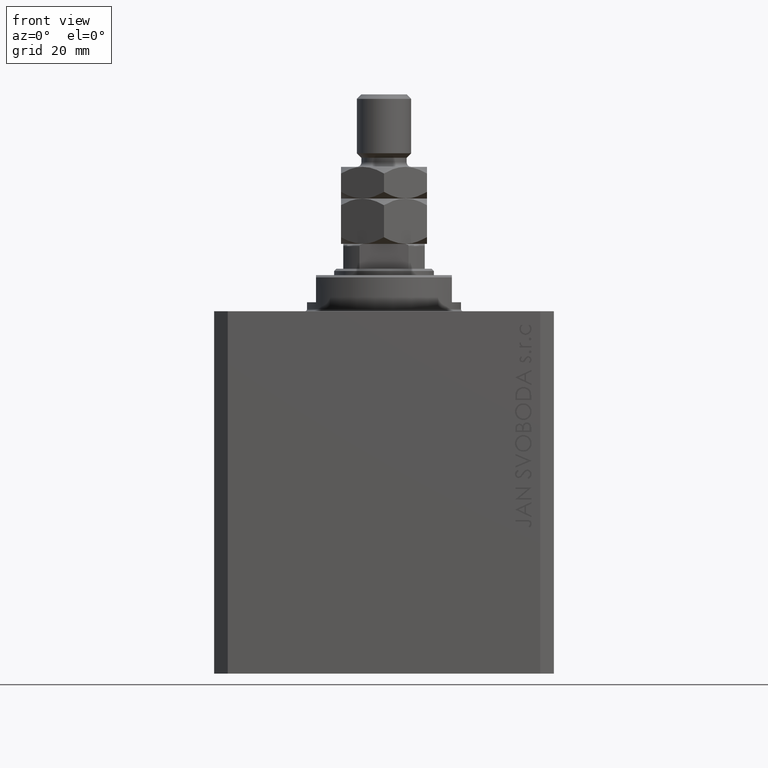
[diagram: clean part render]
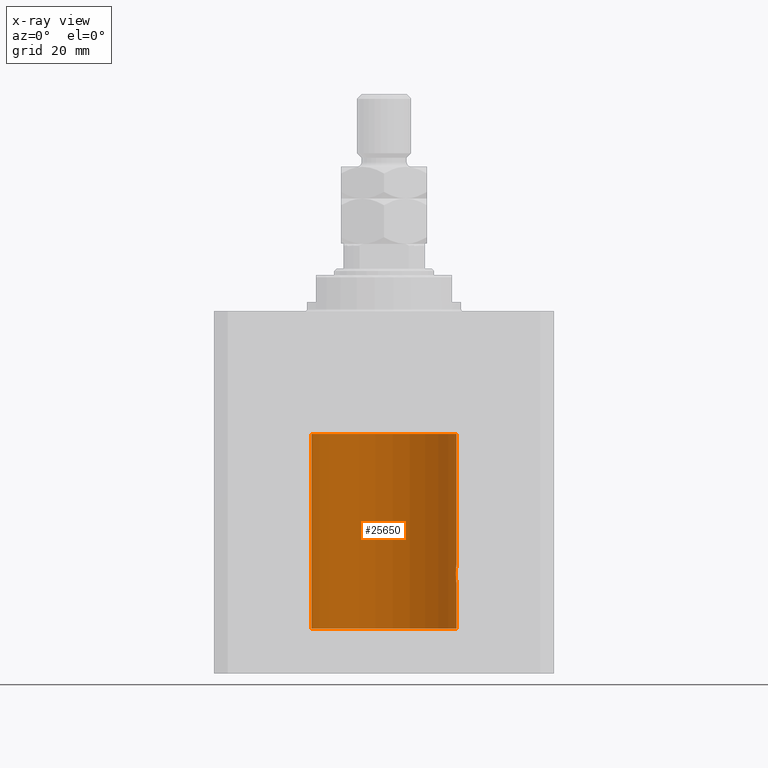
[diagram: x-ray — body ghosted, one internal face saturated and labeled with its STEP entity id]
A machine part, front view, then the same camera in x-ray: the body is ghosted and one INTERNAL B-rep face — a face not visible from any outside direction — is saturated and labeled: STEP entity #25650.
In plain terms, the highlighted cylindrical surface (partial cylindrical patch) has radius 16 mm, axis along (0, 0, 1).
Its self-contained STEP definition (entity closure, byte-faithful):
#510 = DIRECTION ( 'NONE',  ( 1.000000000000000000, 0.000000000000000000, 0.000000000000000000 ) ) ;
#533 = CARTESIAN_POINT ( 'NONE',  ( 15.95380611548779015, 1.219810915946573759, -59.59032870701327766 ) ) ;
#821 = CARTESIAN_POINT ( 'NONE',  ( 15.89878974374255449, 1.797508500259983100, -57.11334888788567099 ) ) ;
#1065 = CARTESIAN_POINT ( 'NONE',  ( 15.96887171920781689, 1.003448269354840328, -56.26505182542073413 ) ) ;
#1216 = DIRECTION ( 'NONE',  ( 1.000000000000000000, 0.000000000000000000, 0.000000000000000000 ) ) ;
#2469 = CARTESIAN_POINT ( 'NONE',  ( 16.00000000000000000, 0.000000000000000000, -70.09999999999999432 ) ) ;
#2581 = DIRECTION ( 'NONE',  ( 1.000000000000000000, 0.000000000000000000, 0.000000000000000000 ) ) ;
#3514 = CARTESIAN_POINT ( 'NONE',  ( 15.98743782203464825, 0.6453927552190282801, -59.89754035852681824 ) ) ;
#3760 = CARTESIAN_POINT ( 'NONE',  ( 15.97582125337101644, 0.8876008124445635694, -59.79704090617750722 ) ) ;
#4294 = CARTESIAN_POINT ( 'NONE',  ( 15.97588373855009536, 0.8864683965309536617, -56.20240655627671345 ) ) ;
#5034 = CARTESIAN_POINT ( 'NONE',  ( 15.92911104305801828, 1.507378839264609027, -56.67893664295412037 ) ) ;
#5482 = VERTEX_POINT ( 'NONE', #8463 ) ;
#6750 = VECTOR ( 'NONE', #35393, 1000.000000000000000 ) ;
#6781 = VERTEX_POINT ( 'NONE', #16782 ) ;
#7486 = CARTESIAN_POINT ( 'NONE',  ( 15.90454527605182200, 1.748004143318092840, -59.00616739381551668 ) ) ;
#8111 = EDGE_CURVE ( 'NONE', #16259, #6781, #42095, .T. ) ;
#8359 = ORIENTED_EDGE ( 'NONE', *, *, #13572, .F. ) ;
#8463 = CARTESIAN_POINT ( 'NONE',  ( -16.00000000000000000, 1.959434878635765131E-15, -70.09999999999999432 ) ) ;
#8604 = VERTEX_POINT ( 'NONE', #36005 ) ;
#8608 = LINE ( 'NONE', #46362, #47470 ) ;
#11412 = CARTESIAN_POINT ( 'NONE',  ( 15.87450786638750699, 2.000000000000304201, -58.00000000000000000 ) ) ;
#11694 = CARTESIAN_POINT ( 'NONE',  ( 16.00000000000000000, -2.739635037742051899E-23, -56.00000000000000000 ) ) ;
#11892 = CARTESIAN_POINT ( 'NONE',  ( 15.99211620657850830, 0.5182628822511372579, -59.93608344894171580 ) ) ;
#12087 = FACE_OUTER_BOUND ( 'NONE', #45492, .T. ) ;
#12921 = CARTESIAN_POINT ( 'NONE',  ( -16.00000000000000000, 1.959434878635765131E-15, -70.09999999999999432 ) ) ;
#13572 = EDGE_CURVE ( 'NONE', #16259, #5482, #44889, .T. ) ;
#13686 = DIRECTION ( 'NONE',  ( 0.000000000000000000, 0.000000000000000000, 1.000000000000000000 ) ) ;
#14535 = VERTEX_POINT ( 'NONE', #36571 ) ;
#14622 = CARTESIAN_POINT ( 'NONE',  ( 15.88135773388169447, 1.947448446433286851, -58.52472455433248655 ) ) ;
#14944 = AXIS2_PLACEMENT_3D ( 'NONE', #37297, #34547, #510 ) ;
#15133 = EDGE_CURVE ( 'NONE', #5482, #14535, #15892, .T. ) ;
#15598 = CARTESIAN_POINT ( 'NONE',  ( 15.94550883254178686, 1.322613426523516988, -59.50588495029015235 ) ) ;
#15892 = LINE ( 'NONE', #12921, #26685 ) ;
#16127 = CARTESIAN_POINT ( 'NONE',  ( 15.92095407913750726, 1.590131347295337116, -56.77998469042918828 ) ) ;
#16259 = VERTEX_POINT ( 'NONE', #2469 ) ;
#16297 = VERTEX_POINT ( 'NONE', #48120 ) ;
#16368 = CARTESIAN_POINT ( 'NONE',  ( 15.90582997788426312, 1.734897462761025189, -56.99646332855052577 ) ) ;
#16466 = EDGE_CURVE ( 'NONE', #37966, #8604, #8608, .T. ) ;
#16782 = CARTESIAN_POINT ( 'NONE',  ( 16.00000000000000000, -1.269217749118193288E-15, -60.00000000000000711 ) ) ;
#17391 = ORIENTED_EDGE ( 'NONE', *, *, #15133, .F. ) ;
#19093 = CARTESIAN_POINT ( 'NONE',  ( 15.95379436193629985, 1.219925354616381297, -56.40980009844313514 ) ) ;
#19576 = CARTESIAN_POINT ( 'NONE',  ( 15.87450786638750699, 2.000000000000304201, -58.00000000000000000 ) ) ;
#19738 = B_SPLINE_CURVE_WITH_KNOTS ( 'NONE', 3,
 ( #22265, #41268, #37320, #11892, #3514, #3760, #26210, #533, #15598, #30613, #7486, #14622, #23228, #11412 ),
 .UNSPECIFIED., .F., .F.,
 ( 4, 2, 2, 2, 2, 2, 4 ),
 ( 1.233258403080811936E-18, 0.0003912813346923395947, 0.0007825626693846778883, 0.001173844004077016561, 0.001565125338769355343, 0.002347688008154032689, 0.003130250677538710252 ),
 .UNSPECIFIED. ) ;
#20155 = ORIENTED_EDGE ( 'NONE', *, *, #37687, .T. ) ;
#20455 = CARTESIAN_POINT ( 'NONE',  ( 0.000000000000000000, 0.000000000000000000, -70.09999999999999432 ) ) ;
#22265 = CARTESIAN_POINT ( 'NONE',  ( 16.00000000000000000, -1.269217749118193288E-15, -60.00000000000000711 ) ) ;
#23228 = CARTESIAN_POINT ( 'NONE',  ( 15.87450786638751410, 2.000000000000305089, -58.26124530359818721 ) ) ;
#23274 = CARTESIAN_POINT ( 'NONE',  ( 15.87450786638751055, 2.000000000000304201, -57.86943869497294202 ) ) ;
#25650 = ADVANCED_FACE ( 'NONE', ( #12087 ), #45909, .F. ) ;
#26210 = CARTESIAN_POINT ( 'NONE',  ( 15.96893716441425859, 1.002454028984433698, -59.73556042441212810 ) ) ;
#26685 = VECTOR ( 'NONE', #26981, 1000.000000000000000 ) ;
#26891 = EDGE_CURVE ( 'NONE', #16297, #37966, #47827, .T. ) ;
#26981 = DIRECTION ( 'NONE',  ( -0.000000000000000000, -0.000000000000000000, 1.000000000000000000 ) ) ;
#27434 = CARTESIAN_POINT ( 'NONE',  ( 16.00000000000000000, -2.739635037742051899E-23, -56.00000000000000000 ) ) ;
#27693 = CARTESIAN_POINT ( 'NONE',  ( 15.88249567060696243, 1.935716055827881199, -57.48027816021619429 ) ) ;
#30520 = AXIS2_PLACEMENT_3D ( 'NONE', #40797, #13686, #2581 ) ;
#30613 = CARTESIAN_POINT ( 'NONE',  ( 15.92096875784782739, 1.599058044721139105, -59.22922593843968286 ) ) ;
#30909 = CARTESIAN_POINT ( 'NONE',  ( 15.94566414814287469, 1.320819617421912229, -56.49240758272490837 ) ) ;
#34375 = CARTESIAN_POINT ( 'NONE',  ( 15.88712192135845491, 1.897869642555083169, -57.35557946728214773 ) ) ;
#34547 = DIRECTION ( 'NONE',  ( 0.000000000000000000, 0.000000000000000000, 1.000000000000000000 ) ) ;
#34738 = ORIENTED_EDGE ( 'NONE', *, *, #43987, .T. ) ;
#34859 = CARTESIAN_POINT ( 'NONE',  ( 15.98747899434752817, 0.6443623600228939319, -56.10211550510821610 ) ) ;
#35393 = DIRECTION ( 'NONE',  ( -0.000000000000000000, -0.000000000000000000, 1.000000000000000000 ) ) ;
#35720 = ORIENTED_EDGE ( 'NONE', *, *, #16466, .T. ) ;
#36005 = CARTESIAN_POINT ( 'NONE',  ( 16.00000000000000000, 0.000000000000000000, -27.10000000000000142 ) ) ;
#36571 = CARTESIAN_POINT ( 'NONE',  ( -16.00000000000000000, 1.959434878635765131E-15, -27.10000000000000142 ) ) ;
#37297 = CARTESIAN_POINT ( 'NONE',  ( 0.000000000000000000, 0.000000000000000000, -70.09999999999999432 ) ) ;
#37320 = CARTESIAN_POINT ( 'NONE',  ( 15.99836014839681830, 0.2623923436743428317, -59.98699919334817565 ) ) ;
#37687 = EDGE_CURVE ( 'NONE', #8604, #14535, #47895, .T. ) ;
#37966 = VERTEX_POINT ( 'NONE', #27434 ) ;
#38325 = CARTESIAN_POINT ( 'NONE',  ( 15.99834953062734222, 0.2631943783489377742, -56.01308452963880313 ) ) ;
#38621 = CARTESIAN_POINT ( 'NONE',  ( 16.00000000000000000, 0.000000000000000000, -70.09999999999999432 ) ) ;
#38720 = DIRECTION ( 'NONE',  ( -0.000000000000000000, -0.000000000000000000, 1.000000000000000000 ) ) ;
#38821 = CARTESIAN_POINT ( 'NONE',  ( 15.87617168140110380, 1.986916736634008140, -57.73680934434935352 ) ) ;
#40797 = CARTESIAN_POINT ( 'NONE',  ( 0.000000000000000000, 0.000000000000000000, -27.10000000000000142 ) ) ;
#41268 = CARTESIAN_POINT ( 'NONE',  ( 15.99999999999999645, 0.1323149458028785030, -60.00000000000003553 ) ) ;
#41798 = CARTESIAN_POINT ( 'NONE',  ( 16.00000000000000000, 0.1305637488590870032, -55.99999999999998579 ) ) ;
#42095 = LINE ( 'NONE', #38621, #6750 ) ;
#42774 = CARTESIAN_POINT ( 'NONE',  ( 15.99207203775707065, 0.5197027266689117075, -56.06427960618061945 ) ) ;
#43360 = ORIENTED_EDGE ( 'NONE', *, *, #8111, .T. ) ;
#43987 = EDGE_CURVE ( 'NONE', #6781, #16297, #19738, .T. ) ;
#44371 = AXIS2_PLACEMENT_3D ( 'NONE', #20455, #38720, #1216 ) ;
#44889 = CIRCLE ( 'NONE', #14944, 16.00000000000000000 ) ;
#45492 = EDGE_LOOP ( 'NONE', ( #17391, #8359, #43360, #34738, #46530, #35720, #20155 ) ) ;
#45909 = CYLINDRICAL_SURFACE ( 'NONE', #44371, 16.00000000000000000 ) ;
#46362 = CARTESIAN_POINT ( 'NONE',  ( 16.00000000000000000, 0.000000000000000000, -70.09999999999999432 ) ) ;
#46530 = ORIENTED_EDGE ( 'NONE', *, *, #26891, .T. ) ;
#47086 = DIRECTION ( 'NONE',  ( -0.000000000000000000, -0.000000000000000000, 1.000000000000000000 ) ) ;
#47470 = VECTOR ( 'NONE', #47086, 1000.000000000000000 ) ;
#47827 = B_SPLINE_CURVE_WITH_KNOTS ( 'NONE', 3,
 ( #19576, #23274, #38821, #27693, #34375, #821, #16368, #16127, #5034, #30909, #19093, #1065, #4294, #34859, #42774, #38325, #41798, #11694 ),
 .UNSPECIFIED., .F., .F.,
 ( 4, 2, 2, 2, 2, 2, 2, 2, 4 ),
 ( 0.003130250677538710252, 0.003521348247420683433, 0.003912445817302656614, 0.004303543387184629795, 0.004694640957066602976, 0.005085738526948576158, 0.005476836096830549339, 0.005867933666712522520, 0.006259031236594495701 ),
 .UNSPECIFIED. ) ;
#47895 = CIRCLE ( 'NONE', #30520, 16.00000000000000000 ) ;
#48120 = CARTESIAN_POINT ( 'NONE',  ( 15.87450786638750699, 2.000000000000304201, -58.00000000000000000 ) ) ;